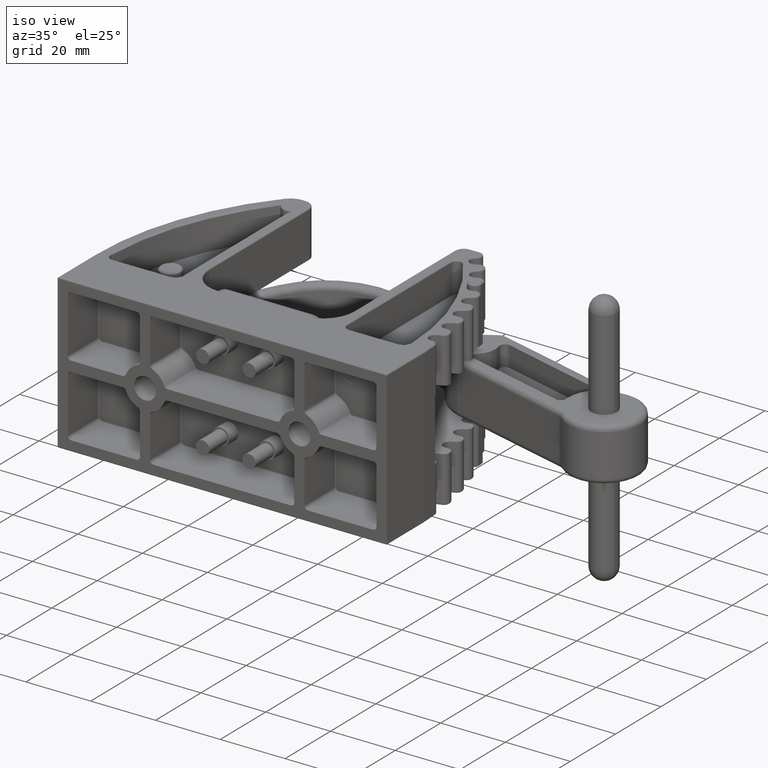
[diagram: clean part render]
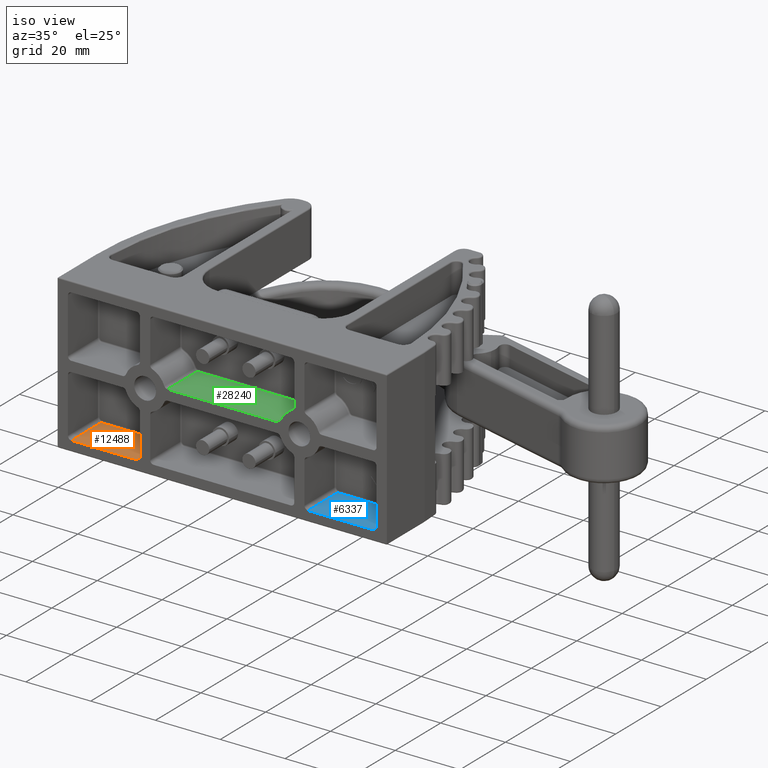
[diagram: same view with three faces highlighted in distinct colors, each labeled with its STEP entity id]
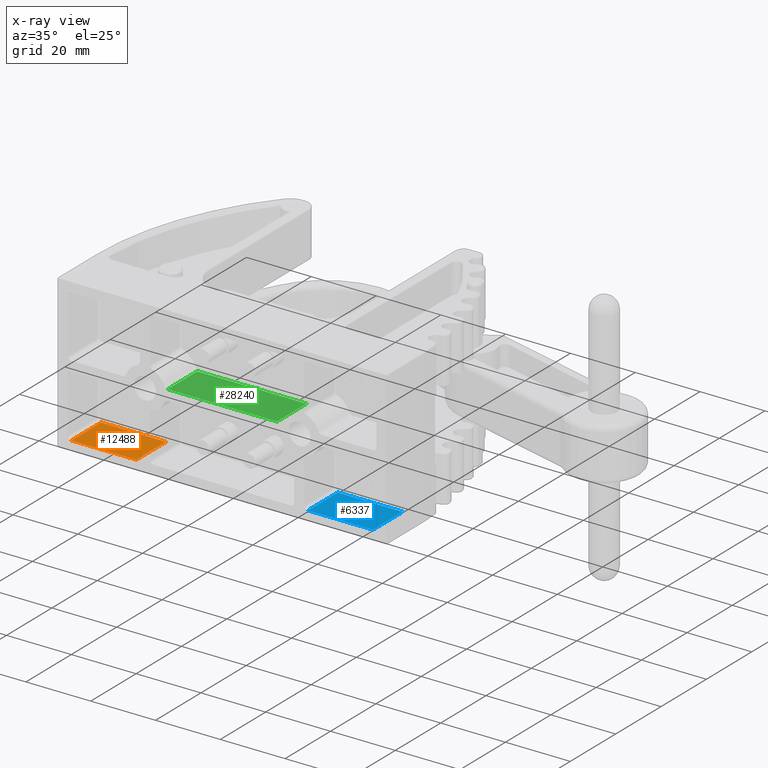
[diagram: x-ray of the same camera — body ghosted, the three highlighted faces saturated]
A machine part, iso view with three faces highlighted in distinct colors.
The next image is the same camera in x-ray (body ghosted, the three faces saturated) — at least one of them is partly hidden behind the body in this view.
Their STEP definitions:

[orange] entity #12488 — the highlighted planar face has unit normal (0, 0, -1).
#190 = VECTOR ( 'NONE', #18530, 39.37007874015748100 ) ;
#221 = CARTESIAN_POINT ( 'NONE',  ( -1.833537996390615800, 0.5310000000000000300, -0.8125000000000000000 ) ) ;
#343 = EDGE_CURVE ( 'NONE', #2046, #6661, #25938, .T. ) ;
#1854 = CARTESIAN_POINT ( 'NONE',  ( -1.041462003609387600, 0.5153749999999999200, -0.8125000000000000000 ) ) ;
#2046 = VERTEX_POINT ( 'NONE', #1854 ) ;
#2729 = ORIENTED_EDGE ( 'NONE', *, *, #24232, .T. ) ;
#6593 = DIRECTION ( 'NONE',  ( -0.0000000000000000000, -1.000000000000000000, -0.0000000000000000000 ) ) ;
#6661 = VERTEX_POINT ( 'NONE', #28357 ) ;
#8448 = ORIENTED_EDGE ( 'NONE', *, *, #343, .T. ) ;
#8657 = EDGE_CURVE ( 'NONE', #28051, #15360, #22323, .T. ) ;
#8830 = CARTESIAN_POINT ( 'NONE',  ( -1.041462003609387600, 0.5310000000000000300, -0.8125000000000000000 ) ) ;
#11002 = DIRECTION ( 'NONE',  ( -1.000000000000000000, -0.0000000000000000000, -0.0000000000000000000 ) ) ;
#11706 = DIRECTION ( 'NONE',  ( 0.0000000000000000000, 0.0000000000000000000, -1.000000000000000000 ) ) ;
#11883 = CARTESIAN_POINT ( 'NONE',  ( -1.041462003609387600, 0.0000000000000000000, -0.8125000000000000000 ) ) ;
#12488 = ADVANCED_FACE ( 'NONE', ( #24154 ), #25372, .F. ) ;
#13196 = VECTOR ( 'NONE', #6593, 39.37007874015748100 ) ;
#13242 = DIRECTION ( 'NONE',  ( 1.000000000000000000, 0.0000000000000000000, 0.0000000000000000000 ) ) ;
#13369 = CARTESIAN_POINT ( 'NONE',  ( -1.833537996390615800, 0.5310000000000000300, -0.8124999999999998900 ) ) ;
#14565 = CARTESIAN_POINT ( 'NONE',  ( -1.833537996390615800, 0.0000000000000000000, -0.8124999999999998900 ) ) ;
#15245 = VECTOR ( 'NONE', #11002, 39.37007874015748100 ) ;
#15360 = VERTEX_POINT ( 'NONE', #11883 ) ;
#18530 = DIRECTION ( 'NONE',  ( -0.0000000000000000000, -1.000000000000000000, -0.0000000000000000000 ) ) ;
#18616 = EDGE_CURVE ( 'NONE', #2046, #15360, #19148, .T. ) ;
#18938 = ORIENTED_EDGE ( 'NONE', *, *, #18616, .F. ) ;
#19148 = LINE ( 'NONE', #8830, #190 ) ;
#19294 = LINE ( 'NONE', #13369, #13196 ) ;
#20397 = AXIS2_PLACEMENT_3D ( 'NONE', #221, #11706, #27655 ) ;
#20716 = ORIENTED_EDGE ( 'NONE', *, *, #8657, .T. ) ;
#22323 = LINE ( 'NONE', #26896, #27661 ) ;
#24154 = FACE_OUTER_BOUND ( 'NONE', #26158, .T. ) ;
#24232 = EDGE_CURVE ( 'NONE', #6661, #28051, #19294, .T. ) ;
#24682 = CARTESIAN_POINT ( 'NONE',  ( -1.833537996390615800, 0.5153749999999999200, -0.8125000000000000000 ) ) ;
#25372 = PLANE ( 'NONE',  #20397 ) ;
#25938 = LINE ( 'NONE', #24682, #15245 ) ;
#26158 = EDGE_LOOP ( 'NONE', ( #18938, #8448, #2729, #20716 ) ) ;
#26896 = CARTESIAN_POINT ( 'NONE',  ( -1.833537996390615800, 0.0000000000000000000, -0.8125000000000000000 ) ) ;
#27655 = DIRECTION ( 'NONE',  ( -1.000000000000000000, 0.0000000000000000000, -0.0000000000000000000 ) ) ;
#27661 = VECTOR ( 'NONE', #13242, 39.37007874015748100 ) ;
#28051 = VERTEX_POINT ( 'NONE', #14565 ) ;
#28357 = CARTESIAN_POINT ( 'NONE',  ( -1.833537996390615800, 0.5153749999999999200, -0.8124999999999998900 ) ) ;

[blue] entity #6337 — the highlighted planar face has unit normal (0, 0, -1).
#311 = CARTESIAN_POINT ( 'NONE',  ( 1.833537996390615300, 0.5153749999999999200, -0.8124999999999998900 ) ) ;
#845 = PLANE ( 'NONE',  #10398 ) ;
#1135 = FACE_OUTER_BOUND ( 'NONE', #15691, .T. ) ;
#1632 = VERTEX_POINT ( 'NONE', #1874 ) ;
#1874 = CARTESIAN_POINT ( 'NONE',  ( 1.041462003609387600, 0.0000000000000000000, -0.8125000000000000000 ) ) ;
#2111 = LINE ( 'NONE', #10930, #25666 ) ;
#3159 = DIRECTION ( 'NONE',  ( -1.000000000000000000, 0.0000000000000000000, -0.0000000000000000000 ) ) ;
#3523 = VECTOR ( 'NONE', #11141, 39.37007874015748100 ) ;
#4113 = ORIENTED_EDGE ( 'NONE', *, *, #9972, .F. ) ;
#5425 = CARTESIAN_POINT ( 'NONE',  ( 1.041462003609387600, 0.5153749999999999200, -0.8125000000000000000 ) ) ;
#5828 = VERTEX_POINT ( 'NONE', #23747 ) ;
#5872 = ORIENTED_EDGE ( 'NONE', *, *, #12565, .T. ) ;
#6337 = ADVANCED_FACE ( 'NONE', ( #1135 ), #845, .F. ) ;
#6892 = ORIENTED_EDGE ( 'NONE', *, *, #28309, .T. ) ;
#9609 = DIRECTION ( 'NONE',  ( 1.000000000000000000, 0.0000000000000000000, 0.0000000000000000000 ) ) ;
#9972 = EDGE_CURVE ( 'NONE', #10539, #5828, #2111, .T. ) ;
#10398 = AXIS2_PLACEMENT_3D ( 'NONE', #12154, #16822, #3159 ) ;
#10539 = VERTEX_POINT ( 'NONE', #311 ) ;
#10930 = CARTESIAN_POINT ( 'NONE',  ( 1.833537996390615300, 0.5310000000000000300, -0.8124999999999998900 ) ) ;
#11141 = DIRECTION ( 'NONE',  ( -0.0000000000000000000, -1.000000000000000000, -0.0000000000000000000 ) ) ;
#11278 = EDGE_CURVE ( 'NONE', #10539, #20211, #22760, .T. ) ;
#11886 = CARTESIAN_POINT ( 'NONE',  ( 1.041462003609387600, 0.0000000000000000000, -0.8125000000000000000 ) ) ;
#12154 = CARTESIAN_POINT ( 'NONE',  ( 1.041462003609387600, 0.5310000000000000300, -0.8125000000000000000 ) ) ;
#12565 = EDGE_CURVE ( 'NONE', #1632, #5828, #28078, .T. ) ;
#12638 = DIRECTION ( 'NONE',  ( -0.0000000000000000000, -1.000000000000000000, -0.0000000000000000000 ) ) ;
#13444 = CARTESIAN_POINT ( 'NONE',  ( 1.041462003609387600, 0.5310000000000000300, -0.8125000000000000000 ) ) ;
#15691 = EDGE_LOOP ( 'NONE', ( #4113, #21714, #6892, #5872 ) ) ;
#15966 = VECTOR ( 'NONE', #24777, 39.37007874015748100 ) ;
#16822 = DIRECTION ( 'NONE',  ( 0.0000000000000000000, 0.0000000000000000000, -1.000000000000000000 ) ) ;
#17925 = CARTESIAN_POINT ( 'NONE',  ( 1.041462003609387600, 0.5153749999999999200, -0.8125000000000000000 ) ) ;
#20211 = VERTEX_POINT ( 'NONE', #5425 ) ;
#21714 = ORIENTED_EDGE ( 'NONE', *, *, #11278, .T. ) ;
#21743 = LINE ( 'NONE', #13444, #3523 ) ;
#22760 = LINE ( 'NONE', #17925, #15966 ) ;
#23747 = CARTESIAN_POINT ( 'NONE',  ( 1.833537996390615300, 0.0000000000000000000, -0.8124999999999998900 ) ) ;
#24777 = DIRECTION ( 'NONE',  ( -1.000000000000000000, -0.0000000000000000000, -0.0000000000000000000 ) ) ;
#25666 = VECTOR ( 'NONE', #12638, 39.37007874015748100 ) ;
#27365 = VECTOR ( 'NONE', #9609, 39.37007874015748100 ) ;
#28078 = LINE ( 'NONE', #11886, #27365 ) ;
#28309 = EDGE_CURVE ( 'NONE', #20211, #1632, #21743, .T. ) ;

[green] entity #28240 — the highlighted planar face has unit normal (0, 0, -1).
#597 = VERTEX_POINT ( 'NONE', #11769 ) ;
#875 = VECTOR ( 'NONE', #14863, 39.37007874015748100 ) ;
#1079 = AXIS2_PLACEMENT_3D ( 'NONE', #10957, #6466, #22447 ) ;
#1444 = EDGE_CURVE ( 'NONE', #15746, #597, #25170, .T. ) ;
#1963 = ORIENTED_EDGE ( 'NONE', *, *, #8176, .F. ) ;
#2193 = CARTESIAN_POINT ( 'NONE',  ( -0.6652097112390522600, 0.5153749999999999200, 0.06249999999999996500 ) ) ;
#3022 = ORIENTED_EDGE ( 'NONE', *, *, #16205, .T. ) ;
#4020 = ORIENTED_EDGE ( 'NONE', *, *, #1444, .T. ) ;
#4779 = VERTEX_POINT ( 'NONE', #9008 ) ;
#5167 = LINE ( 'NONE', #13334, #16593 ) ;
#6466 = DIRECTION ( 'NONE',  ( 6.416792205498128400E-018, 0.0000000000000000000, -1.000000000000000000 ) ) ;
#8176 = EDGE_CURVE ( 'NONE', #27596, #4779, #20213, .T. ) ;
#8284 = CARTESIAN_POINT ( 'NONE',  ( -0.6652097112390522600, 0.0000000000000000000, 0.06249999999999996500 ) ) ;
#8765 = VECTOR ( 'NONE', #13370, 39.37007874015748100 ) ;
#8819 = EDGE_LOOP ( 'NONE', ( #1963, #3022, #4020, #11635 ) ) ;
#9008 = CARTESIAN_POINT ( 'NONE',  ( 0.6652097112390522600, 0.0000000000000000000, 0.06250000000000001400 ) ) ;
#10957 = CARTESIAN_POINT ( 'NONE',  ( -0.6652097112390522600, 0.5310000000000000300, 0.06249999999999996500 ) ) ;
#11635 = ORIENTED_EDGE ( 'NONE', *, *, #24951, .T. ) ;
#11769 = CARTESIAN_POINT ( 'NONE',  ( -0.6652097112390522600, 0.0000000000000000000, 0.06249999999999996500 ) ) ;
#13334 = CARTESIAN_POINT ( 'NONE',  ( -0.6652097112390522600, 0.5153749999999999200, 0.06249999999999996500 ) ) ;
#13370 = DIRECTION ( 'NONE',  ( -0.0000000000000000000, -1.000000000000000000, -0.0000000000000000000 ) ) ;
#14863 = DIRECTION ( 'NONE',  ( -0.0000000000000000000, -1.000000000000000000, -0.0000000000000000000 ) ) ;
#15285 = DIRECTION ( 'NONE',  ( 1.000000000000000000, 0.0000000000000000000, 6.416792205498128400E-018 ) ) ;
#15551 = PLANE ( 'NONE',  #1079 ) ;
#15746 = VERTEX_POINT ( 'NONE', #2193 ) ;
#16205 = EDGE_CURVE ( 'NONE', #27596, #15746, #5167, .T. ) ;
#16593 = VECTOR ( 'NONE', #29342, 39.37007874015748100 ) ;
#17085 = LINE ( 'NONE', #8284, #23143 ) ;
#20213 = LINE ( 'NONE', #27073, #8765 ) ;
#22447 = DIRECTION ( 'NONE',  ( -1.000000000000000000, 0.0000000000000000000, -6.416792205498128400E-018 ) ) ;
#23143 = VECTOR ( 'NONE', #15285, 39.37007874015748100 ) ;
#24951 = EDGE_CURVE ( 'NONE', #597, #4779, #17085, .T. ) ;
#25170 = LINE ( 'NONE', #26334, #875 ) ;
#26334 = CARTESIAN_POINT ( 'NONE',  ( -0.6652097112390522600, 0.5310000000000000300, 0.06249999999999996500 ) ) ;
#26649 = CARTESIAN_POINT ( 'NONE',  ( 0.6652097112390522600, 0.5153749999999999200, 0.06250000000000001400 ) ) ;
#27073 = CARTESIAN_POINT ( 'NONE',  ( 0.6652097112390522600, 0.5310000000000000300, 0.06250000000000001400 ) ) ;
#27596 = VERTEX_POINT ( 'NONE', #26649 ) ;
#28240 = ADVANCED_FACE ( 'NONE', ( #29274 ), #15551, .F. ) ;
#29274 = FACE_OUTER_BOUND ( 'NONE', #8819, .T. ) ;
#29342 = DIRECTION ( 'NONE',  ( -1.000000000000000000, -0.0000000000000000000, -6.416792205498128400E-018 ) ) ;